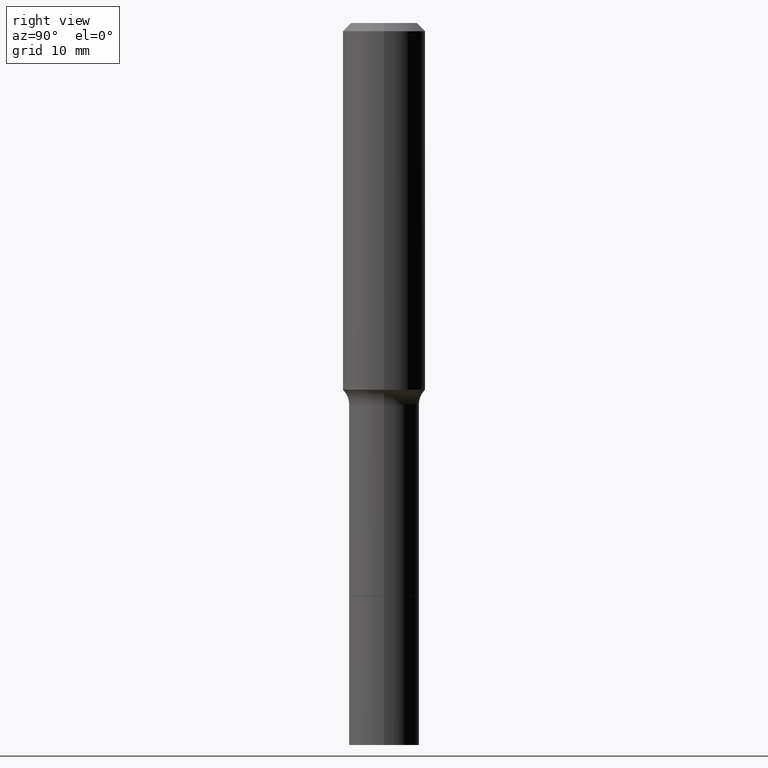
[diagram: clean part render]
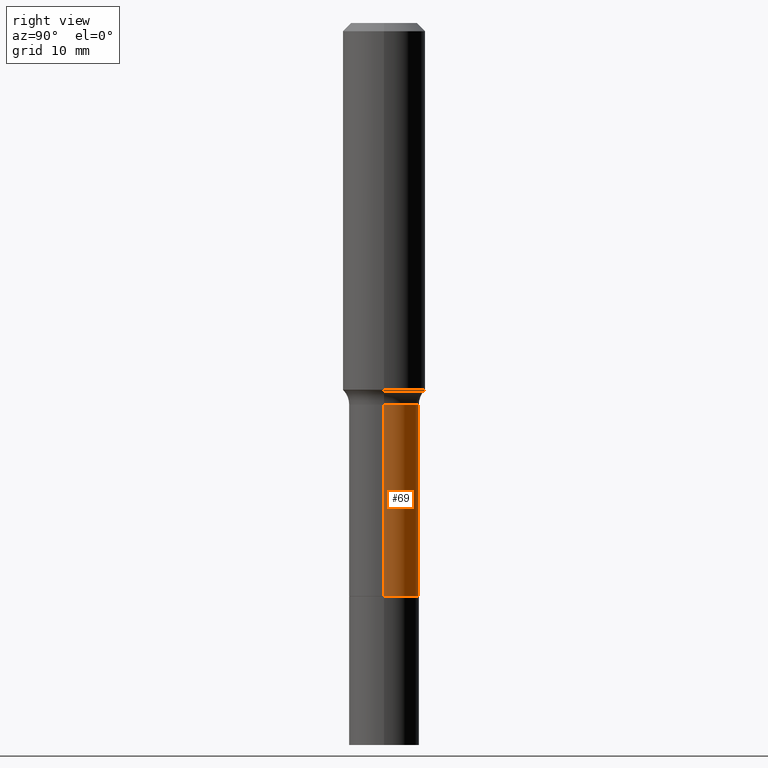
[diagram: same view with one face highlighted and labeled with its STEP entity id]
A machine part, right view. The second image highlights one B-rep face of the part: STEP entity #69.
In plain terms, the highlighted cylindrical surface (edge-blend (fillet) strip) has radius 3.3998 mm, axis along (-0, 0, 1).
Its self-contained STEP definition (entity closure, byte-faithful):
#12 = ORIENTED_EDGE ( 'NONE', *, *, #278, .T. ) ;
#15 = VERTEX_POINT ( 'NONE', #325 ) ;
#20 = CIRCLE ( 'NONE', #324, 0.1338499999999999968 ) ;
#31 = VERTEX_POINT ( 'NONE', #487 ) ;
#34 = DIRECTION ( 'NONE',  ( 1.000000000000000000, -6.982962677686267499E-15, 0.000000000000000000 ) ) ;
#66 = FACE_OUTER_BOUND ( 'NONE', #192, .T. ) ;
#69 = ADVANCED_FACE ( 'NONE', ( #66 ), #389, .T. ) ;
#89 = ORIENTED_EDGE ( 'NONE', *, *, #236, .F. ) ;
#90 = CARTESIAN_POINT ( 'NONE',  ( 0.1338499999999999968, -8.575427316332646674E-15, -2.188400000000000123 ) ) ;
#108 = AXIS2_PLACEMENT_3D ( 'NONE', #129, #172, #516 ) ;
#129 = CARTESIAN_POINT ( 'NONE',  ( 0.000000000000000000, 0.000000000000000000, 0.000000000000000000 ) ) ;
#161 = CARTESIAN_POINT ( 'NONE',  ( -0.1338499999999999690, 9.510614518148938785E-16, -6.583994618306189520E-30 ) ) ;
#172 = DIRECTION ( 'NONE',  ( -2.445468806185136597E-29, 3.491481338843145583E-15, 1.000000000000000000 ) ) ;
#192 = EDGE_LOOP ( 'NONE', ( #12, #431, #248, #89 ) ) ;
#197 = CARTESIAN_POINT ( 'NONE',  ( 3.562803503731125923E-29, -5.086739162560578258E-15, -1.456899999999999862 ) ) ;
#216 = VECTOR ( 'NONE', #390, 39.37007874015748143 ) ;
#222 = DIRECTION ( 'NONE',  ( 1.000000000000000000, -6.982962677686265133E-15, 0.000000000000000000 ) ) ;
#224 = LINE ( 'NONE', #490, #216 ) ;
#233 = CIRCLE ( 'NONE', #252, 0.1338499999999999135 ) ;
#236 = EDGE_CURVE ( 'NONE', #494, #438, #224, .T. ) ;
#245 = EDGE_CURVE ( 'NONE', #438, #31, #233, .T. ) ;
#248 = ORIENTED_EDGE ( 'NONE', *, *, #245, .F. ) ;
#252 = AXIS2_PLACEMENT_3D ( 'NONE', #197, #436, #222 ) ;
#278 = EDGE_CURVE ( 'NONE', #494, #15, #20, .T. ) ;
#324 = AXIS2_PLACEMENT_3D ( 'NONE', #340, #518, #34 ) ;
#325 = CARTESIAN_POINT ( 'NONE',  ( -0.1338499999999999968, -5.412687010427565516E-15, -2.188400000000000123 ) ) ;
#335 = EDGE_CURVE ( 'NONE', #15, #31, #453, .T. ) ;
#340 = CARTESIAN_POINT ( 'NONE',  ( 5.351663935455553124E-29, -7.640757761924339742E-15, -2.188400000000000123 ) ) ;
#389 = CYLINDRICAL_SURFACE ( 'NONE', #108, 0.1338499999999999690 ) ;
#390 = DIRECTION ( 'NONE',  ( -2.445468806185136877E-29, 3.491481338843145188E-15, 1.000000000000000000 ) ) ;
#415 = CARTESIAN_POINT ( 'NONE',  ( 0.1338499999999999135, -6.021408716968884401E-15, -1.456899999999999862 ) ) ;
#431 = ORIENTED_EDGE ( 'NONE', *, *, #335, .T. ) ;
#436 = DIRECTION ( 'NONE',  ( -2.445468806185136597E-29, 3.491481338843145583E-15, 1.000000000000000000 ) ) ;
#438 = VERTEX_POINT ( 'NONE', #415 ) ;
#453 = LINE ( 'NONE', #161, #512 ) ;
#487 = CARTESIAN_POINT ( 'NONE',  ( -0.1338499999999999135, -5.412687010427565516E-15, -1.456899999999999862 ) ) ;
#490 = CARTESIAN_POINT ( 'NONE',  ( 0.1338499999999999690, -9.346695544083065373E-16, 6.526762614402858282E-30 ) ) ;
#494 = VERTEX_POINT ( 'NONE', #90 ) ;
#499 = DIRECTION ( 'NONE',  ( -2.445468806185136877E-29, 3.491481338843145188E-15, 1.000000000000000000 ) ) ;
#512 = VECTOR ( 'NONE', #499, 39.37007874015748143 ) ;
#516 = DIRECTION ( 'NONE',  ( 1.000000000000000000, -6.982962677686266711E-15, 4.876176775795935793E-29 ) ) ;
#518 = DIRECTION ( 'NONE',  ( -2.445468806185136597E-29, 3.491481338843145583E-15, 1.000000000000000000 ) ) ;